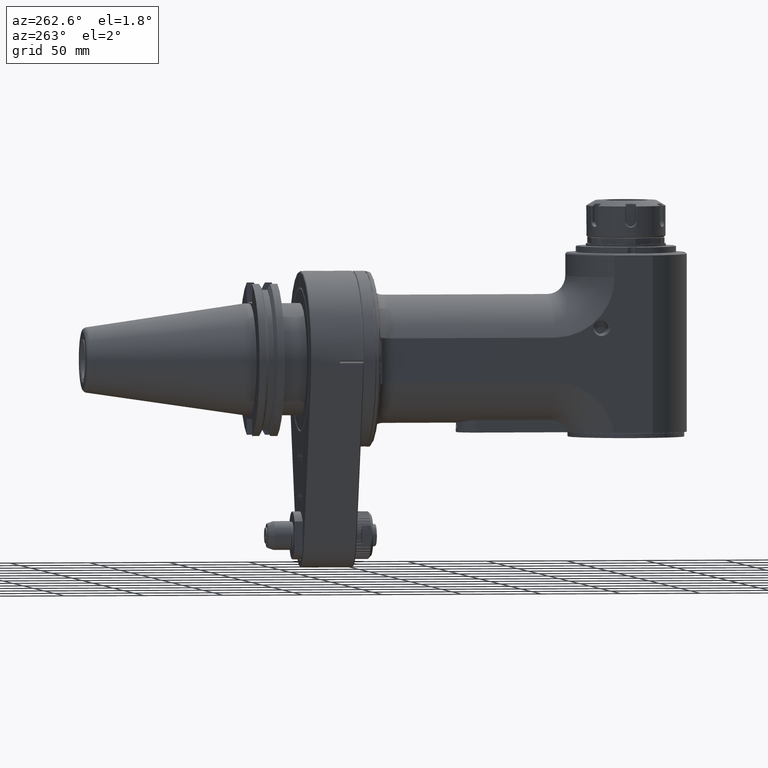
[diagram: clean part render]
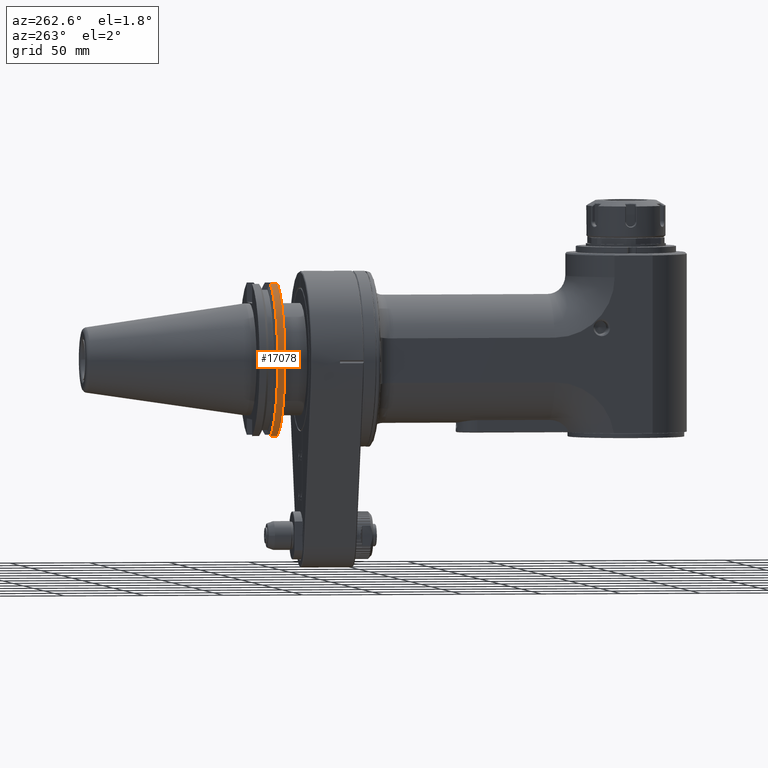
[diagram: same view with one face highlighted and labeled with its STEP entity id]
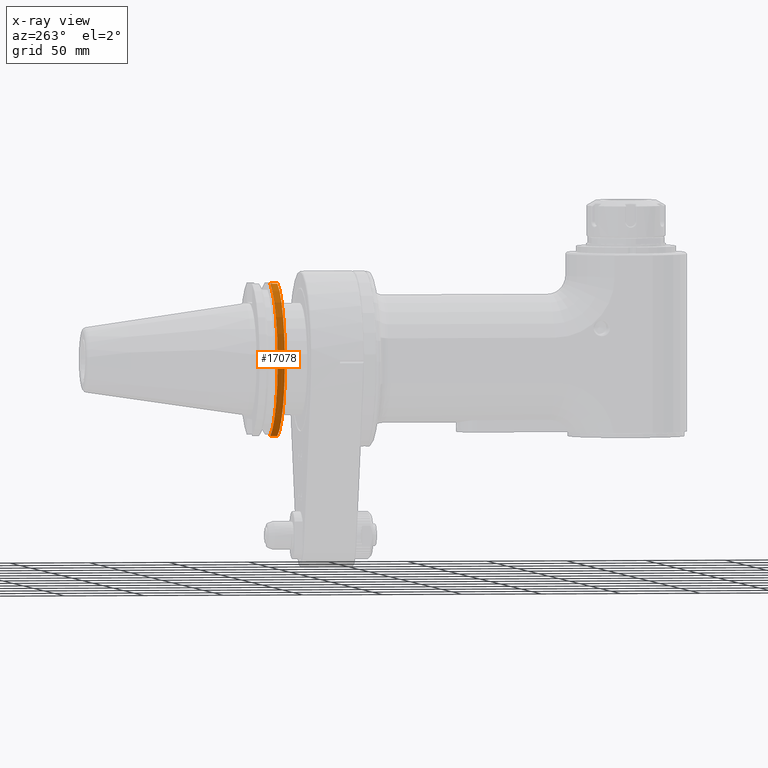
[diagram: x-ray of the same camera — body ghosted, the highlighted face saturated]
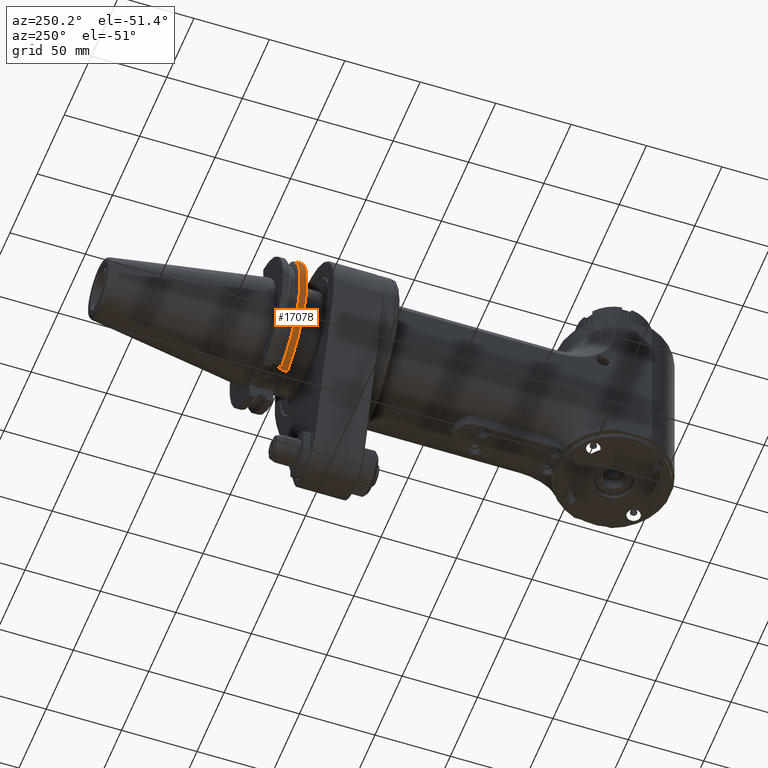
[diagram: same view with one face highlighted and labeled with its STEP entity id]
A machine part, auxiliary view. The second image highlights one B-rep face of the part: STEP entity #17078.
The next image is the same camera in x-ray: the body ghosted, the highlighted face saturated — about 0% of this face is hidden behind the body in this view.
A second angle (auxiliary view) of the same face is appended — the face is thin or edge-on in the first view.
In plain terms, the highlighted cylindrical surface (partial cylindrical patch) has radius 49.21 mm, axis along (0, -1, 0).
Its self-contained STEP definition (entity closure, byte-faithful):
#1991=FACE_OUTER_BOUND('',#3054,.T.);
#3054=EDGE_LOOP('',(#15794,#15795,#15796,#15797));
#4024=CIRCLE('',#18811,49.21);
#4026=CIRCLE('',#18814,49.21);
#5388=LINE('',#32332,#6760);
#5404=LINE('',#32388,#6776);
#6760=VECTOR('',#23490,4.486823611981);
#6776=VECTOR('',#23522,4.486823611981);
#8379=VERTEX_POINT('',#32329);
#8380=VERTEX_POINT('',#32331);
#8398=VERTEX_POINT('',#32381);
#8400=VERTEX_POINT('',#32387);
#10853=EDGE_CURVE('',#8379,#8380,#5388,.T.);
#10875=EDGE_CURVE('',#8379,#8398,#4024,.T.);
#10877=EDGE_CURVE('',#8400,#8398,#5404,.T.);
#10878=EDGE_CURVE('',#8400,#8380,#4026,.T.);
#15794=ORIENTED_EDGE('',*,*,#10853,.F.);
#15795=ORIENTED_EDGE('',*,*,#10875,.T.);
#15796=ORIENTED_EDGE('',*,*,#10877,.F.);
#15797=ORIENTED_EDGE('',*,*,#10878,.T.);
#16139=CYLINDRICAL_SURFACE('',#18813,49.21);
#17078=ADVANCED_FACE('',(#1991),#16139,.T.);
#18811=AXIS2_PLACEMENT_3D('',#32383,#23516,#23517);
#18813=AXIS2_PLACEMENT_3D('',#32386,#23520,#23521);
#18814=AXIS2_PLACEMENT_3D('',#32389,#23523,#23524);
#23490=DIRECTION('',(-3.325603754762E-14,1.,-5.067586673924E-14));
#23516=DIRECTION('center_axis',(0.,1.,0.));
#23517=DIRECTION('ref_axis',(-0.261125787441599,0.,-0.965304782508097));
#23520=DIRECTION('center_axis',(0.,-1.,0.));
#23521=DIRECTION('ref_axis',(0.,0.,1.));
#23522=DIRECTION('',(3.325603754762E-14,-1.,-4.592500423243E-14));
#23523=DIRECTION('center_axis',(0.,-1.,0.));
#23524=DIRECTION('ref_axis',(-0.261125787441599,0.,0.965304782508097));
#32329=CARTESIAN_POINT('',(-12.85,48.9000000000001,-47.50264834722));
#32331=CARTESIAN_POINT('',(-12.85,53.386823611981,-47.50264834722));
#32332=CARTESIAN_POINT('',(-12.85,48.9000000000001,-47.50264834722));
#32381=CARTESIAN_POINT('',(-12.85,48.9000000000003,47.50264834722));
#32383=CARTESIAN_POINT('Origin',(0.,48.9000000000003,-1.224644799147E-14));
#32386=CARTESIAN_POINT('Origin',(0.,175.845,-1.224644799147E-14));
#32387=CARTESIAN_POINT('',(-12.85,53.386823611982,47.50264834722));
#32388=CARTESIAN_POINT('',(-12.85,53.386823611981,47.50264834722));
#32389=CARTESIAN_POINT('Origin',(0.,53.386823611982,-1.224644799147E-14));